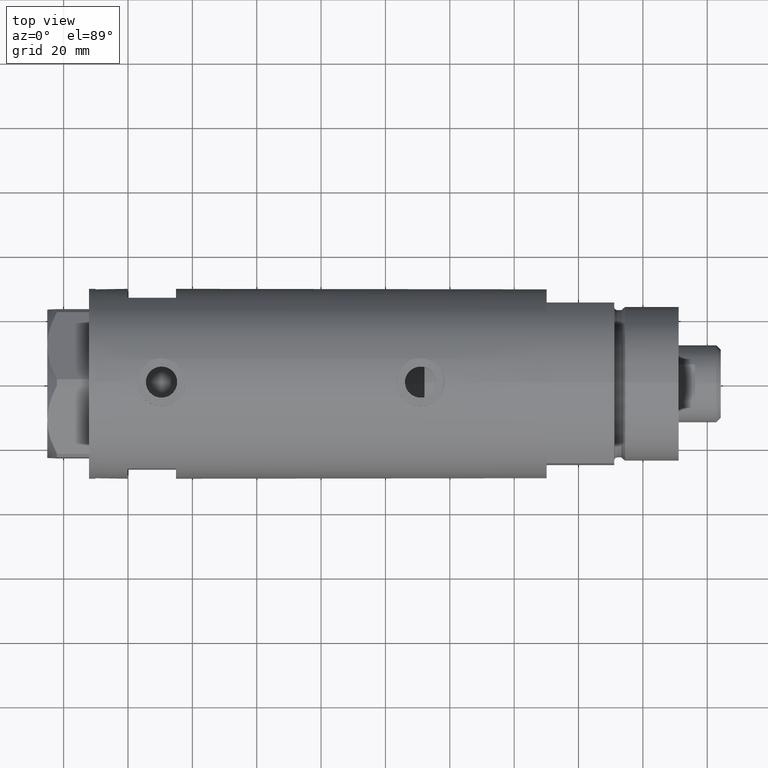
[diagram: clean part render]
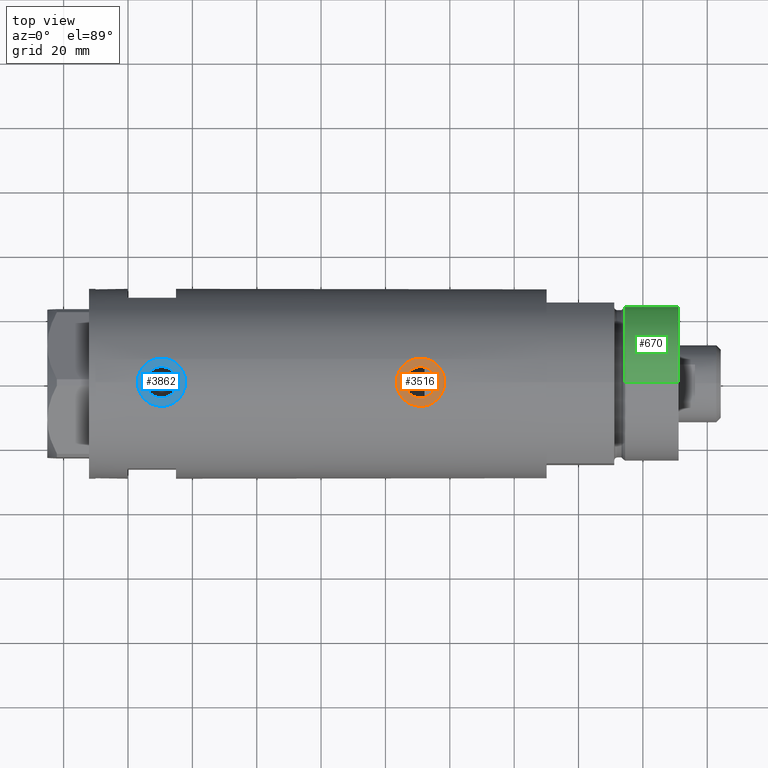
[diagram: same view with three faces highlighted in distinct colors, each labeled with its STEP entity id]
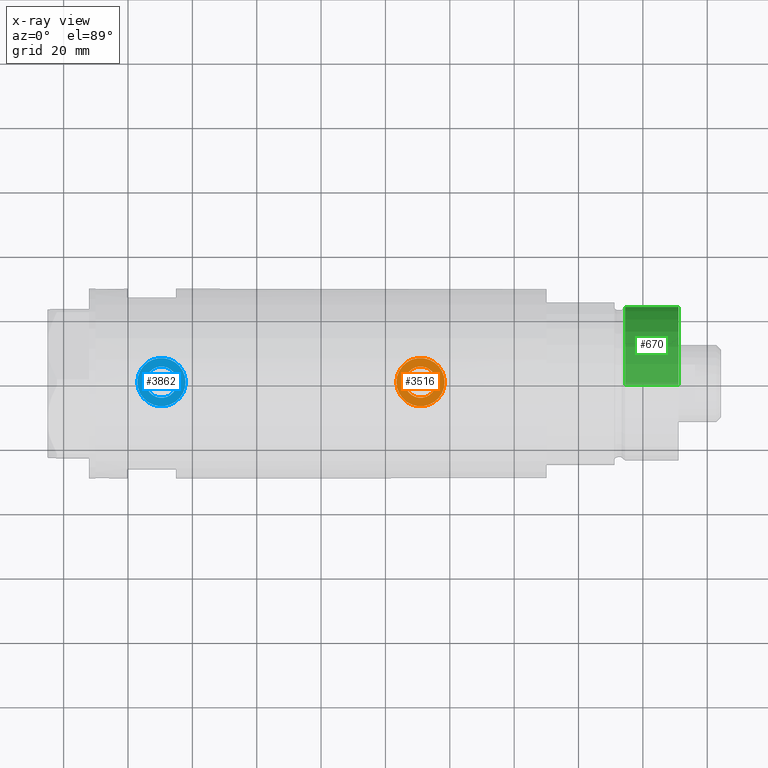
[diagram: x-ray of the same camera — body ghosted, the three highlighted faces saturated]
A machine part, top view with three faces highlighted in distinct colors.
The next image is the same camera in x-ray (body ghosted, the three faces saturated) — at least one of them is partly hidden behind the body in this view.
Their STEP definitions:

[orange] entity #3516 — the highlighted planar face has unit normal (0, 0, 1).
#28 = AXIS2_PLACEMENT_3D ( 'NONE', #4606, #1271, #4582 ) ;
#285 = EDGE_CURVE ( 'NONE', #2554, #4365, #3358, .T. ) ;
#439 = EDGE_LOOP ( 'NONE', ( #1140, #4322 ) ) ;
#614 = AXIS2_PLACEMENT_3D ( 'NONE', #3023, #3789, #2626 ) ;
#660 = CARTESIAN_POINT ( 'NONE',  ( 28.30000000000000071, 0.000000000000000000, -30.89999999999999147 ) ) ;
#1007 = EDGE_CURVE ( 'NONE', #4365, #2554, #2092, .T. ) ;
#1140 = ORIENTED_EDGE ( 'NONE', *, *, #2521, .F. ) ;
#1271 = DIRECTION ( 'NONE',  ( 1.000000000000000000, 0.000000000000000000, 0.000000000000000000 ) ) ;
#1465 = CARTESIAN_POINT ( 'NONE',  ( 28.30000000000000071, 0.000000000000000000, -30.89999999999999147 ) ) ;
#1707 = DIRECTION ( 'NONE',  ( 0.000000000000000000, 0.000000000000000000, -1.000000000000000000 ) ) ;
#1718 = EDGE_CURVE ( 'NONE', #4346, #4767, #1783, .T. ) ;
#1733 = FACE_BOUND ( 'NONE', #439, .T. ) ;
#1746 = CARTESIAN_POINT ( 'NONE',  ( 28.30000000000000071, 0.000000000000000000, -30.89999999999999147 ) ) ;
#1783 = CIRCLE ( 'NONE', #614, 4.865000000000001101 ) ;
#2015 = PLANE ( 'NONE',  #28 ) ;
#2059 = FACE_OUTER_BOUND ( 'NONE', #4399, .T. ) ;
#2092 = CIRCLE ( 'NONE', #2485, 7.500000000000000000 ) ;
#2104 = DIRECTION ( 'NONE',  ( 1.000000000000000000, 0.000000000000000000, 0.000000000000000000 ) ) ;
#2143 = CARTESIAN_POINT ( 'NONE',  ( 28.30000000000000071, 5.957906677851872610E-16, -26.03499999999998948 ) ) ;
#2253 = ORIENTED_EDGE ( 'NONE', *, *, #1007, .T. ) ;
#2485 = AXIS2_PLACEMENT_3D ( 'NONE', #660, #4647, #1707 ) ;
#2521 = EDGE_CURVE ( 'NONE', #4767, #4346, #3893, .T. ) ;
#2554 = VERTEX_POINT ( 'NONE', #4677 ) ;
#2588 = DIRECTION ( 'NONE',  ( 0.000000000000000000, 0.000000000000000000, -1.000000000000000000 ) ) ;
#2606 = ORIENTED_EDGE ( 'NONE', *, *, #285, .T. ) ;
#2626 = DIRECTION ( 'NONE',  ( 0.000000000000000000, 0.000000000000000000, -1.000000000000000000 ) ) ;
#2774 = CARTESIAN_POINT ( 'NONE',  ( 28.30000000000000071, 0.000000000000000000, -35.76499999999999346 ) ) ;
#2865 = DIRECTION ( 'NONE',  ( 0.000000000000000000, 0.000000000000000000, -1.000000000000000000 ) ) ;
#3023 = CARTESIAN_POINT ( 'NONE',  ( 28.30000000000000071, 0.000000000000000000, -30.89999999999999147 ) ) ;
#3283 = AXIS2_PLACEMENT_3D ( 'NONE', #1746, #2104, #2865 ) ;
#3358 = CIRCLE ( 'NONE', #3283, 7.500000000000000000 ) ;
#3516 = ADVANCED_FACE ( 'NONE', ( #1733, #2059 ), #2015, .T. ) ;
#3748 = CARTESIAN_POINT ( 'NONE',  ( 28.30000000000000071, 9.184850993605147944E-16, -23.39999999999999147 ) ) ;
#3789 = DIRECTION ( 'NONE',  ( 1.000000000000000000, 0.000000000000000000, 0.000000000000000000 ) ) ;
#3893 = CIRCLE ( 'NONE', #4738, 4.865000000000001101 ) ;
#4322 = ORIENTED_EDGE ( 'NONE', *, *, #1718, .F. ) ;
#4346 = VERTEX_POINT ( 'NONE', #2143 ) ;
#4365 = VERTEX_POINT ( 'NONE', #3748 ) ;
#4399 = EDGE_LOOP ( 'NONE', ( #2606, #2253 ) ) ;
#4444 = DIRECTION ( 'NONE',  ( 1.000000000000000000, 0.000000000000000000, 0.000000000000000000 ) ) ;
#4582 = DIRECTION ( 'NONE',  ( 0.000000000000000000, 0.000000000000000000, -1.000000000000000000 ) ) ;
#4606 = CARTESIAN_POINT ( 'NONE',  ( 28.30000000000000071, 0.000000000000000000, -30.89999999999999147 ) ) ;
#4647 = DIRECTION ( 'NONE',  ( 1.000000000000000000, 0.000000000000000000, 0.000000000000000000 ) ) ;
#4677 = CARTESIAN_POINT ( 'NONE',  ( 28.30000000000000071, 0.000000000000000000, -38.39999999999999147 ) ) ;
#4738 = AXIS2_PLACEMENT_3D ( 'NONE', #1465, #4444, #2588 ) ;
#4767 = VERTEX_POINT ( 'NONE', #2774 ) ;

[blue] entity #3862 — the highlighted planar face has unit normal (0, 0, 1).
#403 = CIRCLE ( 'NONE', #3990, 7.500000000000000000 ) ;
#520 = ORIENTED_EDGE ( 'NONE', *, *, #1071, .F. ) ;
#523 = DIRECTION ( 'NONE',  ( 0.000000000000000000, 0.000000000000000000, -1.000000000000000000 ) ) ;
#562 = AXIS2_PLACEMENT_3D ( 'NONE', #2584, #4771, #4025 ) ;
#739 = EDGE_CURVE ( 'NONE', #3913, #751, #4358, .T. ) ;
#746 = VERTEX_POINT ( 'NONE', #3033 ) ;
#751 = VERTEX_POINT ( 'NONE', #1119 ) ;
#1071 = EDGE_CURVE ( 'NONE', #3198, #746, #3963, .T. ) ;
#1109 = ORIENTED_EDGE ( 'NONE', *, *, #4684, .T. ) ;
#1119 = CARTESIAN_POINT ( 'NONE',  ( 28.30000000000000071, 9.184850993605147944E-16, 57.09999999999999432 ) ) ;
#1317 = DIRECTION ( 'NONE',  ( 0.000000000000000000, 0.000000000000000000, -1.000000000000000000 ) ) ;
#1326 = ORIENTED_EDGE ( 'NONE', *, *, #739, .T. ) ;
#1515 = DIRECTION ( 'NONE',  ( 0.000000000000000000, 0.000000000000000000, -1.000000000000000000 ) ) ;
#1644 = CIRCLE ( 'NONE', #562, 4.865000000000001101 ) ;
#1789 = AXIS2_PLACEMENT_3D ( 'NONE', #4516, #4107, #1515 ) ;
#1937 = AXIS2_PLACEMENT_3D ( 'NONE', #4239, #3094, #523 ) ;
#1943 = ORIENTED_EDGE ( 'NONE', *, *, #4775, .F. ) ;
#1989 = DIRECTION ( 'NONE',  ( 1.000000000000000000, 0.000000000000000000, 0.000000000000000000 ) ) ;
#2016 = CARTESIAN_POINT ( 'NONE',  ( 28.30000000000000071, 0.000000000000000000, 49.59999999999999432 ) ) ;
#2269 = EDGE_LOOP ( 'NONE', ( #1943, #520 ) ) ;
#2584 = CARTESIAN_POINT ( 'NONE',  ( 28.30000000000000071, 0.000000000000000000, 49.59999999999999432 ) ) ;
#2741 = FACE_BOUND ( 'NONE', #2269, .T. ) ;
#3033 = CARTESIAN_POINT ( 'NONE',  ( 28.30000000000000071, 0.000000000000000000, 44.73499999999999233 ) ) ;
#3094 = DIRECTION ( 'NONE',  ( 1.000000000000000000, 0.000000000000000000, 0.000000000000000000 ) ) ;
#3198 = VERTEX_POINT ( 'NONE', #3643 ) ;
#3570 = DIRECTION ( 'NONE',  ( 1.000000000000000000, 0.000000000000000000, 0.000000000000000000 ) ) ;
#3587 = DIRECTION ( 'NONE',  ( 0.000000000000000000, 0.000000000000000000, -1.000000000000000000 ) ) ;
#3643 = CARTESIAN_POINT ( 'NONE',  ( 28.30000000000000071, 5.957906677851872610E-16, 54.46499999999998920 ) ) ;
#3862 = ADVANCED_FACE ( 'NONE', ( #2741, #4314 ), #4576, .T. ) ;
#3913 = VERTEX_POINT ( 'NONE', #4406 ) ;
#3963 = CIRCLE ( 'NONE', #4348, 4.865000000000001101 ) ;
#3990 = AXIS2_PLACEMENT_3D ( 'NONE', #2016, #1989, #3587 ) ;
#4025 = DIRECTION ( 'NONE',  ( 0.000000000000000000, 0.000000000000000000, -1.000000000000000000 ) ) ;
#4107 = DIRECTION ( 'NONE',  ( 1.000000000000000000, 0.000000000000000000, 0.000000000000000000 ) ) ;
#4239 = CARTESIAN_POINT ( 'NONE',  ( 28.30000000000000071, 0.000000000000000000, 49.59999999999999432 ) ) ;
#4314 = FACE_OUTER_BOUND ( 'NONE', #4759, .T. ) ;
#4321 = CARTESIAN_POINT ( 'NONE',  ( 28.30000000000000071, 0.000000000000000000, 49.59999999999999432 ) ) ;
#4348 = AXIS2_PLACEMENT_3D ( 'NONE', #4321, #3570, #1317 ) ;
#4358 = CIRCLE ( 'NONE', #1789, 7.500000000000000000 ) ;
#4406 = CARTESIAN_POINT ( 'NONE',  ( 28.30000000000000071, 0.000000000000000000, 42.09999999999999432 ) ) ;
#4516 = CARTESIAN_POINT ( 'NONE',  ( 28.30000000000000071, 0.000000000000000000, 49.59999999999999432 ) ) ;
#4576 = PLANE ( 'NONE',  #1937 ) ;
#4684 = EDGE_CURVE ( 'NONE', #751, #3913, #403, .T. ) ;
#4759 = EDGE_LOOP ( 'NONE', ( #1326, #1109 ) ) ;
#4771 = DIRECTION ( 'NONE',  ( 1.000000000000000000, 0.000000000000000000, 0.000000000000000000 ) ) ;
#4775 = EDGE_CURVE ( 'NONE', #746, #3198, #1644, .T. ) ;

[green] entity #670 — the highlighted cylindrical surface (partial cylindrical patch) has radius 24 mm, axis along (-1, -0, 0).
#31 = DIRECTION ( 'NONE',  ( -0.000000000000000000, -0.000000000000000000, -1.000000000000000000 ) ) ;
#670 = ADVANCED_FACE ( 'NONE', ( #4653 ), #1904, .T. ) ;
#869 = VERTEX_POINT ( 'NONE', #1246 ) ;
#880 = DIRECTION ( 'NONE',  ( -0.000000000000000000, -0.000000000000000000, -1.000000000000000000 ) ) ;
#955 = VECTOR ( 'NONE', #880, 1000.000000000000000 ) ;
#1089 = DIRECTION ( 'NONE',  ( -1.000000000000000000, 0.000000000000000000, 0.000000000000000000 ) ) ;
#1246 = CARTESIAN_POINT ( 'NONE',  ( 24.00000000000000355, 2.939152317953648289E-15, 41.00000000000000000 ) ) ;
#1311 = DIRECTION ( 'NONE',  ( 1.000000000000000000, 0.000000000000000000, 0.000000000000000000 ) ) ;
#1366 = DIRECTION ( 'NONE',  ( 0.000000000000000000, 0.000000000000000000, 1.000000000000000000 ) ) ;
#1393 = DIRECTION ( 'NONE',  ( 1.000000000000000000, 0.000000000000000000, 0.000000000000000000 ) ) ;
#1552 = VECTOR ( 'NONE', #4428, 1000.000000000000000 ) ;
#1904 = CYLINDRICAL_SURFACE ( 'NONE', #3750, 24.00000000000000355 ) ;
#2095 = EDGE_CURVE ( 'NONE', #3594, #2787, #3202, .T. ) ;
#2135 = CARTESIAN_POINT ( 'NONE',  ( 0.000000000000000000, 0.000000000000000000, 41.00000000000000000 ) ) ;
#2246 = CARTESIAN_POINT ( 'NONE',  ( 0.000000000000000000, 0.000000000000000000, 41.00000000000000000 ) ) ;
#2418 = ORIENTED_EDGE ( 'NONE', *, *, #2885, .F. ) ;
#2438 = ORIENTED_EDGE ( 'NONE', *, *, #4547, .T. ) ;
#2556 = CARTESIAN_POINT ( 'NONE',  ( 24.00000000000000355, 2.939152317953648289E-15, 24.37384048104054557 ) ) ;
#2689 = EDGE_CURVE ( 'NONE', #3435, #2787, #4763, .T. ) ;
#2727 = LINE ( 'NONE', #3773, #955 ) ;
#2787 = VERTEX_POINT ( 'NONE', #3920 ) ;
#2885 = EDGE_CURVE ( 'NONE', #869, #3435, #3207, .T. ) ;
#2928 = EDGE_LOOP ( 'NONE', ( #2418, #2438, #3776, #3418 ) ) ;
#3202 = CIRCLE ( 'NONE', #3749, 24.00000000000000355 ) ;
#3207 = CIRCLE ( 'NONE', #4133, 24.00000000000000355 ) ;
#3418 = ORIENTED_EDGE ( 'NONE', *, *, #2689, .F. ) ;
#3435 = VERTEX_POINT ( 'NONE', #3903 ) ;
#3594 = VERTEX_POINT ( 'NONE', #2556 ) ;
#3683 = CARTESIAN_POINT ( 'NONE',  ( -24.00000000000000355, 0.000000000000000000, 41.00000000000000000 ) ) ;
#3749 = AXIS2_PLACEMENT_3D ( 'NONE', #3975, #4710, #1393 ) ;
#3750 = AXIS2_PLACEMENT_3D ( 'NONE', #2246, #31, #1089 ) ;
#3773 = CARTESIAN_POINT ( 'NONE',  ( 24.00000000000000355, 2.939152317953648289E-15, 41.00000000000000000 ) ) ;
#3776 = ORIENTED_EDGE ( 'NONE', *, *, #2095, .T. ) ;
#3903 = CARTESIAN_POINT ( 'NONE',  ( -24.00000000000000355, 0.000000000000000000, 41.00000000000000000 ) ) ;
#3920 = CARTESIAN_POINT ( 'NONE',  ( -24.00000000000000355, 0.000000000000000000, 24.37384048104054557 ) ) ;
#3975 = CARTESIAN_POINT ( 'NONE',  ( 0.000000000000000000, 0.000000000000000000, 24.37384048104054557 ) ) ;
#4133 = AXIS2_PLACEMENT_3D ( 'NONE', #2135, #1366, #1311 ) ;
#4428 = DIRECTION ( 'NONE',  ( -0.000000000000000000, -0.000000000000000000, -1.000000000000000000 ) ) ;
#4547 = EDGE_CURVE ( 'NONE', #869, #3594, #2727, .T. ) ;
#4653 = FACE_OUTER_BOUND ( 'NONE', #2928, .T. ) ;
#4710 = DIRECTION ( 'NONE',  ( -0.000000000000000000, -0.000000000000000000, 1.000000000000000000 ) ) ;
#4763 = LINE ( 'NONE', #3683, #1552 ) ;